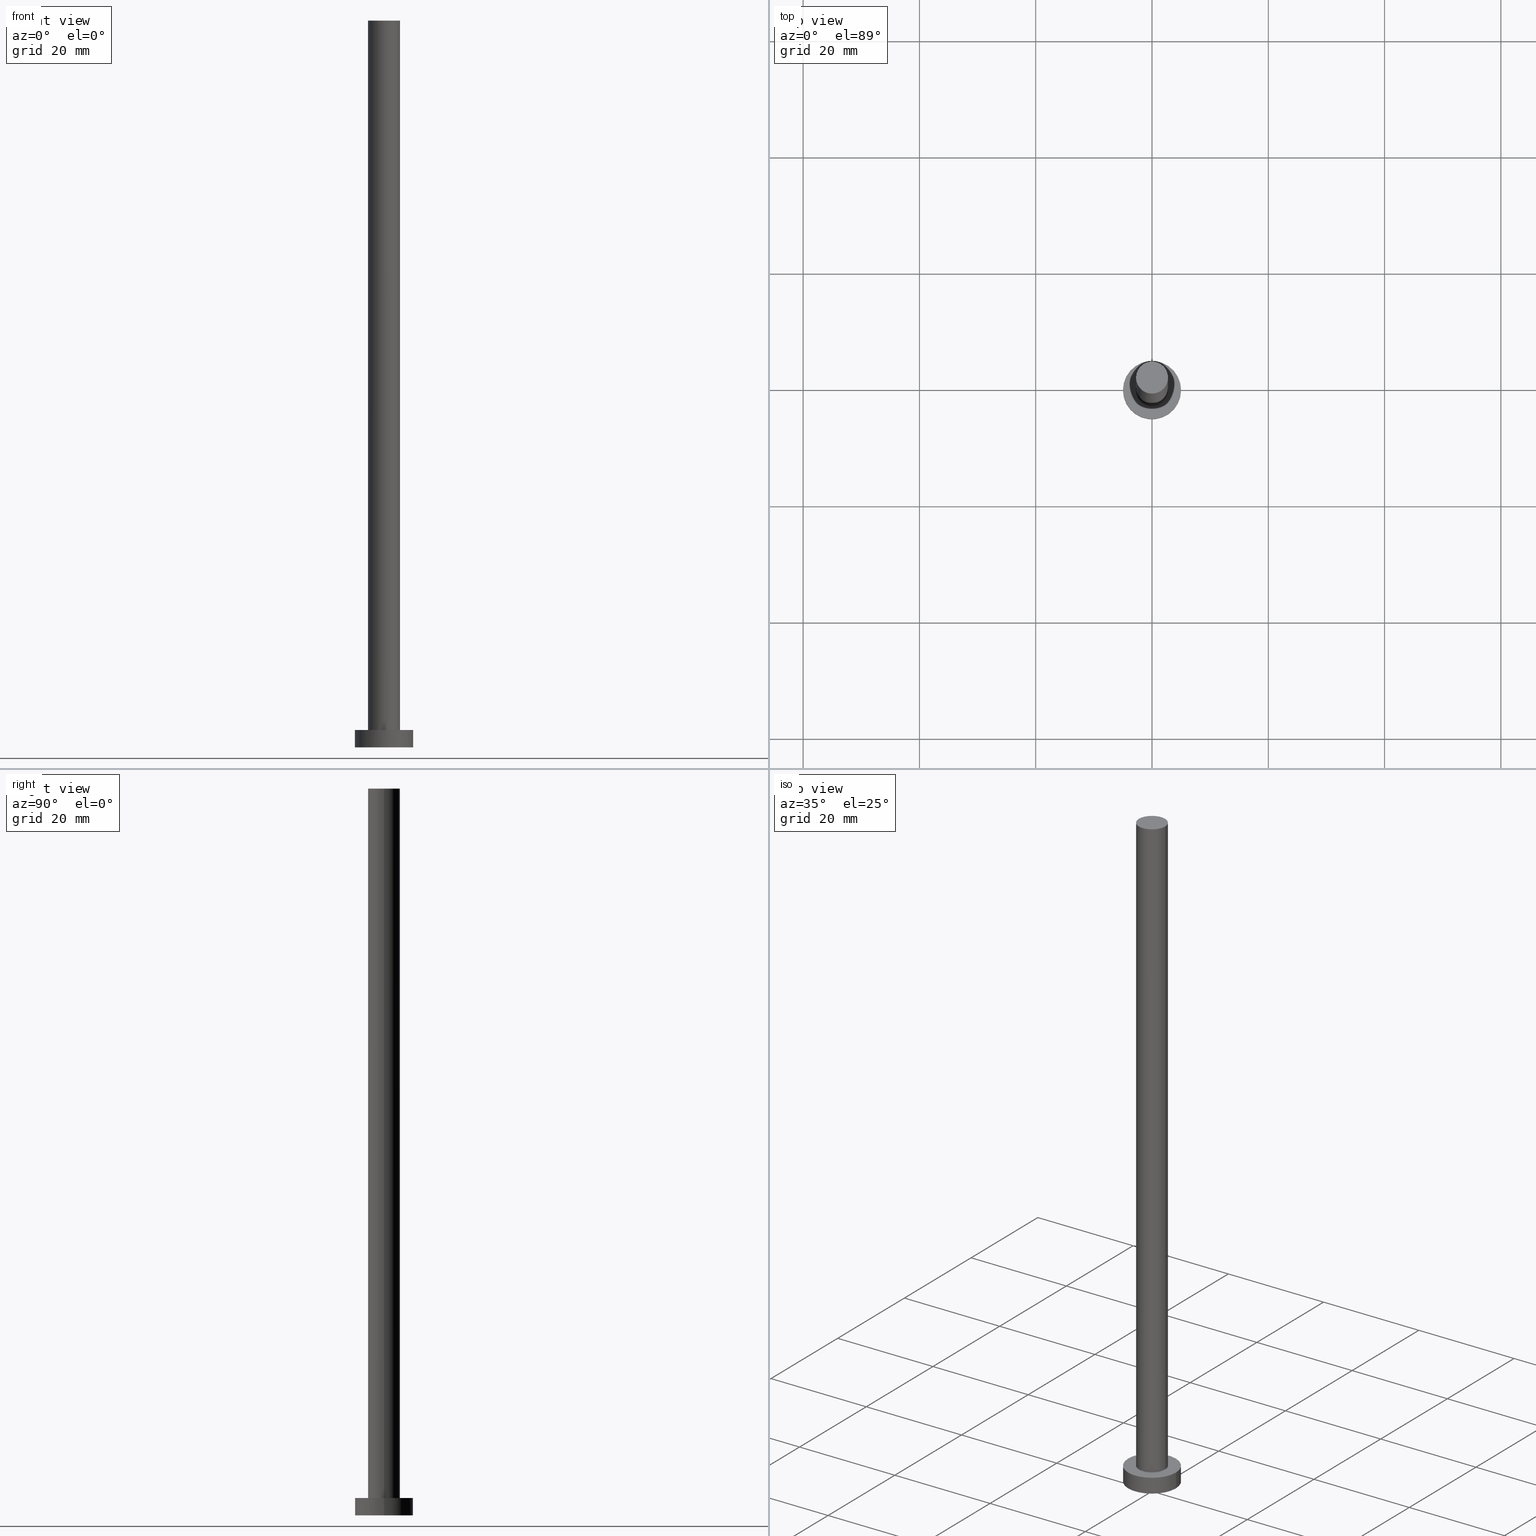
[diagram: canonical four-view strip — front | top / right | iso, engineering-drawing reading convention]
A machine part, canonical four-view strip (front | top / right | iso — engineering-drawing reading convention). The complete STEP part file that produces these views, byte-faithful:
ISO-10303-21;
HEADER;
FILE_DESCRIPTION (( 'STEP AP203' ),
    '1' );
FILE_NAME ('3fe7.STEP',
    '2023-02-13T15:47:36',
    ( '' ),
    ( '' ),
    'SwSTEP 2.0',
    'SolidWorks 2019',
    '' );
FILE_SCHEMA (( 'CONFIG_CONTROL_DESIGN' ));
ENDSEC;

DATA;
#1 = FACE_OUTER_BOUND ( 'NONE', #169, .T. ) ;
#2 = DIRECTION ( 'NONE',  ( 1.000000000000000000, 0.000000000000000000, -0.000000000000000000 ) ) ;
#3 = VERTEX_POINT ( 'NONE', #110 ) ;
#4 = APPROVAL ( #35, 'NEUR�EN�' ) ;
#5 = VECTOR ( 'NONE', #218, 1000.000000000000000 ) ;
#6 = EDGE_CURVE ( 'NONE', #234, #249, #133, .T. ) ;
#7 = DIRECTION ( 'NONE',  ( 0.000000000000000000, 0.000000000000000000, 1.000000000000000000 ) ) ;
#8 = CIRCLE ( 'NONE', #222, 2.750000000000000000 ) ;
#9 = COORDINATED_UNIVERSAL_TIME_OFFSET ( 1, 0, .AHEAD. ) ;
#10 = AXIS2_PLACEMENT_3D ( 'NONE', #43, #134, #138 ) ;
#11 = EDGE_CURVE ( 'NONE', #162, #234, #145, .T. ) ;
#12 = APPLICATION_PROTOCOL_DEFINITION ( 'international standard', 'config_control_design', 1994, #124 ) ;
#13 = APPROVAL_ROLE ( '' ) ;
#14 = APPROVAL_PERSON_ORGANIZATION ( #48, #161, #52 ) ;
#15 = ORIENTED_EDGE ( 'NONE', *, *, #223, .T. ) ;
#16 = EDGE_CURVE ( 'NONE', #98, #120, #190, .T. ) ;
#17 = CARTESIAN_POINT ( 'NONE',  ( 5.000000000000000000, 6.123233995736766282E-16, 0.000000000000000000 ) ) ;
#18 = PLANE ( 'NONE',  #69 ) ;
#19 = CALENDAR_DATE ( 2023, 13, 2 ) ;
#20 = FACE_OUTER_BOUND ( 'NONE', #26, .T. ) ;
#21 = EDGE_CURVE ( 'NONE', #249, #3, #117, .T. ) ;
#22 = CARTESIAN_POINT ( 'NONE',  ( 5.000000000000000000, 6.123233995736766282E-16, 3.000000000000000000 ) ) ;
#23 = CARTESIAN_POINT ( 'NONE',  ( 0.000000000000000000, 0.000000000000000000, 3.000000000000000000 ) ) ;
#24 = DIRECTION ( 'NONE',  ( 0.000000000000000000, 0.000000000000000000, 1.000000000000000000 ) ) ;
#25 = ORIENTED_EDGE ( 'NONE', *, *, #44, .T. ) ;
#26 = EDGE_LOOP ( 'NONE', ( #47, #85, #213, #187 ) ) ;
#27 = DATE_AND_TIME ( #66, #33 ) ;
#28 = DATE_TIME_ROLE ( 'creation_date' ) ;
#29 = DESIGN_CONTEXT ( 'detailed design', #191, 'design' ) ;
#30 = EDGE_LOOP ( 'NONE', ( #236, #15, #25, #247 ) ) ;
#31 = COORDINATED_UNIVERSAL_TIME_OFFSET ( 1, 0, .AHEAD. ) ;
#32 = ORIENTED_EDGE ( 'NONE', *, *, #16, .F. ) ;
#33 = LOCAL_TIME ( 16, 47, 36.00000000000000000, #9 ) ;
#34 = ADVANCED_FACE ( 'NONE', ( #65 ), #80, .T. ) ;
#35 = APPROVAL_STATUS ( 'not_yet_approved' ) ;
#36 = DIRECTION ( 'NONE',  ( -0.000000000000000000, -0.000000000000000000, -1.000000000000000000 ) ) ;
#37 = VECTOR ( 'NONE', #189, 1000.000000000000000 ) ;
#38 = EDGE_CURVE ( 'NONE', #98, #106, #101, .T. ) ;
#39 = CARTESIAN_POINT ( 'NONE',  ( 0.000000000000000000, 0.000000000000000000, 3.000000000000000000 ) ) ;
#40 = DIRECTION ( 'NONE',  ( 1.000000000000000000, 0.000000000000000000, 0.000000000000000000 ) ) ;
#41 = CYLINDRICAL_SURFACE ( 'NONE', #45, 5.000000000000000000 ) ;
#42 = DIRECTION ( 'NONE',  ( 0.000000000000000000, 0.000000000000000000, 1.000000000000000000 ) ) ;
#43 = CARTESIAN_POINT ( 'NONE',  ( 0.000000000000000000, 0.000000000000000000, 125.0000000000000000 ) ) ;
#44 = EDGE_CURVE ( 'NONE', #3, #249, #8, .T. ) ;
#45 = AXIS2_PLACEMENT_3D ( 'NONE', #23, #160, #179 ) ;
#46 = AXIS2_PLACEMENT_3D ( 'NONE', #70, #153, #71 ) ;
#47 = ORIENTED_EDGE ( 'NONE', *, *, #223, .F. ) ;
#48 = PERSON_AND_ORGANIZATION ( #194, #122 ) ;
#49 = APPROVAL_STATUS ( 'not_yet_approved' ) ;
#50 = UNCERTAINTY_MEASURE_WITH_UNIT (LENGTH_MEASURE( 1.000000000000000082E-05 ), #159, 'distance_accuracy_value', 'NONE');
#51 = LOCAL_TIME ( 16, 47, 36.00000000000000000, #215 ) ;
#52 = APPROVAL_ROLE ( '' ) ;
#53 = DIRECTION ( 'NONE',  ( 0.000000000000000000, 0.000000000000000000, 1.000000000000000000 ) ) ;
#54 = ADVANCED_FACE ( 'NONE', ( #181 ), #41, .T. ) ;
#55 = AXIS2_PLACEMENT_3D ( 'NONE', #226, #105, #198 ) ;
#56 = VERTEX_POINT ( 'NONE', #17 ) ;
#57 = PERSON_AND_ORGANIZATION ( #194, #122 ) ;
#58 = AXIS2_PLACEMENT_3D ( 'NONE', #96, #241, #239 ) ;
#59 = CC_DESIGN_APPROVAL ( #150, ( #102 ) ) ;
#60 = VECTOR ( 'NONE', #157, 1000.000000000000000 ) ;
#61 = ORIENTED_EDGE ( 'NONE', *, *, #233, .T. ) ;
#62 = ADVANCED_FACE ( 'NONE', ( #237 ), #185, .T. ) ;
#63 = AXIS2_PLACEMENT_3D ( 'NONE', #227, #53, #94 ) ;
#64 = CC_DESIGN_SECURITY_CLASSIFICATION ( #195, ( #102 ) ) ;
#65 = FACE_OUTER_BOUND ( 'NONE', #175, .T. ) ;
#66 = CALENDAR_DATE ( 2023, 13, 2 ) ;
#67 = PERSON_AND_ORGANIZATION_ROLE ( 'creator' ) ;
#68 = EDGE_CURVE ( 'NONE', #120, #56, #229, .T. ) ;
#69 = AXIS2_PLACEMENT_3D ( 'NONE', #116, #24, #2 ) ;
#70 = CARTESIAN_POINT ( 'NONE',  ( 0.000000000000000000, 0.000000000000000000, 3.000000000000000000 ) ) ;
#71 = DIRECTION ( 'NONE',  ( 1.000000000000000000, 0.000000000000000000, 0.000000000000000000 ) ) ;
#72 = CARTESIAN_POINT ( 'NONE',  ( -5.000000000000000000, 0.000000000000000000, 3.000000000000000000 ) ) ;
#73 = PRODUCT_DEFINITION_SHAPE ( 'NONE', 'NONE',  #137 ) ;
#74 = ORIENTED_EDGE ( 'NONE', *, *, #233, .F. ) ;
#75 = DIRECTION ( 'NONE',  ( 1.000000000000000000, 0.000000000000000000, -0.000000000000000000 ) ) ;
#76 = VECTOR ( 'NONE', #149, 1000.000000000000000 ) ;
#77 = CARTESIAN_POINT ( 'NONE',  ( 0.000000000000000000, 0.000000000000000000, 125.0000000000000000 ) ) ;
#78 = AXIS2_PLACEMENT_3D ( 'NONE', #214, #202, #121 ) ;
#79 = COORDINATED_UNIVERSAL_TIME_OFFSET ( 1, 0, .AHEAD. ) ;
#80 = PLANE ( 'NONE',  #58 ) ;
#81 =( NAMED_UNIT ( * ) PLANE_ANGLE_UNIT ( ) SI_UNIT ( $, .RADIAN. ) );
#82 = PERSON_AND_ORGANIZATION ( #194, #122 ) ;
#83 =( GEOMETRIC_REPRESENTATION_CONTEXT ( 3 ) GLOBAL_UNCERTAINTY_ASSIGNED_CONTEXT ( ( #50 ) ) GLOBAL_UNIT_ASSIGNED_CONTEXT ( ( #159, #81, #152 ) ) REPRESENTATION_CONTEXT ( 'NONE', 'WORKASPACE' ) );
#84 = CC_DESIGN_PERSON_AND_ORGANIZATION_ASSIGNMENT ( #211, #127, ( #186 ) ) ;
#85 = ORIENTED_EDGE ( 'NONE', *, *, #207, .F. ) ;
#86 = PERSON_AND_ORGANIZATION_ROLE ( 'design_supplier' ) ;
#87 = ORIENTED_EDGE ( 'NONE', *, *, #207, .T. ) ;
#88 = AXIS2_PLACEMENT_3D ( 'NONE', #147, #7, #141 ) ;
#89 = EDGE_LOOP ( 'NONE', ( #199, #95 ) ) ;
#90 = ADVANCED_FACE ( 'NONE', ( #104 ), #167, .T. ) ;
#91 = ADVANCED_BREP_SHAPE_REPRESENTATION ( '3fe7', ( #206, #88 ), #83 ) ;
#92 = CARTESIAN_POINT ( 'NONE',  ( 0.000000000000000000, 0.000000000000000000, 0.000000000000000000 ) ) ;
#93 = CARTESIAN_POINT ( 'NONE',  ( -2.750000000000000000, 0.000000000000000000, 125.0000000000000000 ) ) ;
#94 = DIRECTION ( 'NONE',  ( 1.000000000000000000, 0.000000000000000000, 0.000000000000000000 ) ) ;
#95 = ORIENTED_EDGE ( 'NONE', *, *, #44, .F. ) ;
#96 = CARTESIAN_POINT ( 'NONE',  ( 0.000000000000000000, 0.000000000000000000, 125.0000000000000000 ) ) ;
#97 = CALENDAR_DATE ( 2023, 13, 2 ) ;
#98 = VERTEX_POINT ( 'NONE', #246 ) ;
#99 = EDGE_LOOP ( 'NONE', ( #192, #123 ) ) ;
#100 = EDGE_CURVE ( 'NONE', #106, #98, #108, .T. ) ;
#101 = CIRCLE ( 'NONE', #111, 5.000000000000000000 ) ;
#102 = PRODUCT_DEFINITION_FORMATION_WITH_SPECIFIED_SOURCE ( 'LIBOVOLN�', '', #186, .NOT_KNOWN. ) ;
#103 = DATE_AND_TIME ( #225, #201 ) ;
#104 = FACE_OUTER_BOUND ( 'NONE', #130, .T. ) ;
#105 = DIRECTION ( 'NONE',  ( 0.000000000000000000, 0.000000000000000000, 1.000000000000000000 ) ) ;
#106 = VERTEX_POINT ( 'NONE', #217 ) ;
#107 = CC_DESIGN_PERSON_AND_ORGANIZATION_ASSIGNMENT ( #82, #86, ( #102 ) ) ;
#108 = CIRCLE ( 'NONE', #46, 5.000000000000000000 ) ;
#109 = DIRECTION ( 'NONE',  ( -1.000000000000000000, 0.000000000000000000, 0.000000000000000000 ) ) ;
#110 = CARTESIAN_POINT ( 'NONE',  ( 2.750000000000000000, 3.367778697655220519E-16, 3.000000000000000000 ) ) ;
#111 = AXIS2_PLACEMENT_3D ( 'NONE', #146, #208, #220 ) ;
#112 = LINE ( 'NONE', #182, #5 ) ;
#113 = CARTESIAN_POINT ( 'NONE',  ( 0.000000000000000000, 0.000000000000000000, 125.0000000000000000 ) ) ;
#114 = FACE_BOUND ( 'NONE', #89, .T. ) ;
#115 = CC_DESIGN_PERSON_AND_ORGANIZATION_ASSIGNMENT ( #244, #245, ( #195 ) ) ;
#116 = CARTESIAN_POINT ( 'NONE',  ( 0.000000000000000000, 0.000000000000000000, 0.000000000000000000 ) ) ;
#117 = CIRCLE ( 'NONE', #78, 2.750000000000000000 ) ;
#118 = AXIS2_PLACEMENT_3D ( 'NONE', #92, #42, #40 ) ;
#119 = MECHANICAL_CONTEXT ( 'NONE', #124, 'mechanical' ) ;
#120 = VERTEX_POINT ( 'NONE', #254 ) ;
#121 = DIRECTION ( 'NONE',  ( 1.000000000000000000, 0.000000000000000000, 0.000000000000000000 ) ) ;
#122 = ORGANIZATION ( 'NEUR�EN�', 'NEUR�EN�', '' ) ;
#123 = ORIENTED_EDGE ( 'NONE', *, *, #100, .T. ) ;
#124 = APPLICATION_CONTEXT ( 'configuration controlled 3d designs of mechanical parts and assemblies' ) ;
#125 = DIRECTION ( 'NONE',  ( 1.000000000000000000, 0.000000000000000000, 0.000000000000000000 ) ) ;
#126 = SHAPE_DEFINITION_REPRESENTATION ( #73, #91 ) ;
#127 = PERSON_AND_ORGANIZATION_ROLE ( 'design_owner' ) ;
#128 = CC_DESIGN_DATE_AND_TIME_ASSIGNMENT ( #180, #248, ( #195 ) ) ;
#129 = DIRECTION ( 'NONE',  ( -1.000000000000000000, 0.000000000000000000, 0.000000000000000000 ) ) ;
#130 = EDGE_LOOP ( 'NONE', ( #74, #196, #140, #209 ) ) ;
#131 = APPROVAL_ROLE ( '' ) ;
#132 = AXIS2_PLACEMENT_3D ( 'NONE', #39, #136, #75 ) ;
#133 = LINE ( 'NONE', #251, #76 ) ;
#134 = DIRECTION ( 'NONE',  ( -0.000000000000000000, -0.000000000000000000, -1.000000000000000000 ) ) ;
#135 = CLOSED_SHELL ( 'NONE', ( #62, #54, #90, #144, #243, #188, #34 ) ) ;
#136 = DIRECTION ( 'NONE',  ( 0.000000000000000000, 0.000000000000000000, 1.000000000000000000 ) ) ;
#137 = PRODUCT_DEFINITION ( 'NEZN�M�', '', #102, #29 ) ;
#138 = DIRECTION ( 'NONE',  ( -1.000000000000000000, 0.000000000000000000, 0.000000000000000000 ) ) ;
#139 = CYLINDRICAL_SURFACE ( 'NONE', #10, 2.750000000000000000 ) ;
#140 = ORIENTED_EDGE ( 'NONE', *, *, #16, .T. ) ;
#141 = DIRECTION ( 'NONE',  ( 1.000000000000000000, 0.000000000000000000, 0.000000000000000000 ) ) ;
#142 = CC_DESIGN_APPROVAL ( #4, ( #195 ) ) ;
#143 = APPROVAL_DATE_TIME ( #27, #161 ) ;
#144 = ADVANCED_FACE ( 'NONE', ( #114, #235 ), #231, .T. ) ;
#145 = CIRCLE ( 'NONE', #63, 2.750000000000000000 ) ;
#146 = CARTESIAN_POINT ( 'NONE',  ( 0.000000000000000000, 0.000000000000000000, 3.000000000000000000 ) ) ;
#147 = CARTESIAN_POINT ( 'NONE',  ( 0.000000000000000000, 0.000000000000000000, 0.000000000000000000 ) ) ;
#148 = CARTESIAN_POINT ( 'NONE',  ( 0.000000000000000000, 0.000000000000000000, 3.000000000000000000 ) ) ;
#149 = DIRECTION ( 'NONE',  ( -0.000000000000000000, -0.000000000000000000, -1.000000000000000000 ) ) ;
#150 = APPROVAL ( #49, 'NEUR�EN�' ) ;
#151 = CIRCLE ( 'NONE', #118, 5.000000000000000000 ) ;
#152 =( NAMED_UNIT ( * ) SI_UNIT ( $, .STERADIAN. ) SOLID_ANGLE_UNIT ( ) );
#153 = DIRECTION ( 'NONE',  ( 0.000000000000000000, 0.000000000000000000, 1.000000000000000000 ) ) ;
#154 = PERSON_AND_ORGANIZATION ( #194, #122 ) ;
#155 = PERSON_AND_ORGANIZATION ( #194, #122 ) ;
#156 = AXIS2_PLACEMENT_3D ( 'NONE', #77, #212, #129 ) ;
#157 = DIRECTION ( 'NONE',  ( -0.000000000000000000, -0.000000000000000000, -1.000000000000000000 ) ) ;
#158 = ORIENTED_EDGE ( 'NONE', *, *, #197, .T. ) ;
#159 =( LENGTH_UNIT ( ) NAMED_UNIT ( * ) SI_UNIT ( .MILLI., .METRE. ) );
#160 = DIRECTION ( 'NONE',  ( -0.000000000000000000, -0.000000000000000000, -1.000000000000000000 ) ) ;
#161 = APPROVAL ( #173, 'NEUR�EN�' ) ;
#162 = VERTEX_POINT ( 'NONE', #184 ) ;
#163 = DATE_AND_TIME ( #172, #238 ) ;
#164 = COORDINATED_UNIVERSAL_TIME_OFFSET ( 1, 0, .AHEAD. ) ;
#165 = ORIENTED_EDGE ( 'NONE', *, *, #100, .F. ) ;
#166 = SECURITY_CLASSIFICATION_LEVEL ( 'unclassified' ) ;
#167 = CYLINDRICAL_SURFACE ( 'NONE', #219, 5.000000000000000000 ) ;
#168 = CARTESIAN_POINT ( 'NONE',  ( 0.000000000000000000, 0.000000000000000000, 3.000000000000000000 ) ) ;
#169 = EDGE_LOOP ( 'NONE', ( #242, #174 ) ) ;
#170 = CC_DESIGN_APPROVAL ( #161, ( #137 ) ) ;
#171 = PERSON_AND_ORGANIZATION ( #194, #122 ) ;
#172 = CALENDAR_DATE ( 2023, 13, 2 ) ;
#173 = APPROVAL_STATUS ( 'not_yet_approved' ) ;
#174 = ORIENTED_EDGE ( 'NONE', *, *, #197, .F. ) ;
#175 = EDGE_LOOP ( 'NONE', ( #87, #253 ) ) ;
#176 = APPROVAL_DATE_TIME ( #163, #150 ) ;
#177 = APPROVAL_PERSON_ORGANIZATION ( #57, #150, #131 ) ;
#178 = CARTESIAN_POINT ( 'NONE',  ( -2.750000000000000000, 0.000000000000000000, 3.000000000000000000 ) ) ;
#179 = DIRECTION ( 'NONE',  ( -1.000000000000000000, 0.000000000000000000, 0.000000000000000000 ) ) ;
#180 = DATE_AND_TIME ( #19, #51 ) ;
#181 = FACE_OUTER_BOUND ( 'NONE', #221, .T. ) ;
#182 = CARTESIAN_POINT ( 'NONE',  ( 2.750000000000000000, 3.367778697655220519E-16, 125.0000000000000000 ) ) ;
#183 = LOCAL_TIME ( 16, 47, 36.00000000000000000, #164 ) ;
#184 = CARTESIAN_POINT ( 'NONE',  ( 2.750000000000000000, 3.367778697655220519E-16, 125.0000000000000000 ) ) ;
#185 = CYLINDRICAL_SURFACE ( 'NONE', #156, 2.750000000000000000 ) ;
#186 = PRODUCT ( '3fe7', '3fe7', '', ( #119 ) ) ;
#187 = ORIENTED_EDGE ( 'NONE', *, *, #21, .T. ) ;
#188 = ADVANCED_FACE ( 'NONE', ( #20 ), #139, .T. ) ;
#189 = DIRECTION ( 'NONE',  ( -0.000000000000000000, -0.000000000000000000, -1.000000000000000000 ) ) ;
#190 = LINE ( 'NONE', #72, #60 ) ;
#191 = APPLICATION_CONTEXT ( 'configuration controlled 3d designs of mechanical parts and assemblies' ) ;
#192 = ORIENTED_EDGE ( 'NONE', *, *, #38, .T. ) ;
#193 = PERSON_AND_ORGANIZATION_ROLE ( 'creator' ) ;
#194 = PERSON ( 'NEUR�EN�', 'NEUR�EN�', 'NEUR�EN�', ('NEUR�EN�'), ('NEUR�EN�'), ('NEUR�EN�') ) ;
#195 = SECURITY_CLASSIFICATION ( '', '', #166 ) ;
#196 = ORIENTED_EDGE ( 'NONE', *, *, #38, .F. ) ;
#197 = EDGE_CURVE ( 'NONE', #56, #120, #151, .T. ) ;
#198 = DIRECTION ( 'NONE',  ( 1.000000000000000000, 0.000000000000000000, 0.000000000000000000 ) ) ;
#199 = ORIENTED_EDGE ( 'NONE', *, *, #21, .F. ) ;
#200 = APPLICATION_PROTOCOL_DEFINITION ( 'international standard', 'config_control_design', 1994, #191 ) ;
#201 = LOCAL_TIME ( 16, 47, 36.00000000000000000, #31 ) ;
#202 = DIRECTION ( 'NONE',  ( 0.000000000000000000, 0.000000000000000000, 1.000000000000000000 ) ) ;
#203 = CC_DESIGN_DATE_AND_TIME_ASSIGNMENT ( #230, #28, ( #137 ) ) ;
#204 = LINE ( 'NONE', #22, #37 ) ;
#205 = AXIS2_PLACEMENT_3D ( 'NONE', #113, #216, #255 ) ;
#206 = MANIFOLD_SOLID_BREP ( 'P�idat vysunut�m3', #135 ) ;
#207 = EDGE_CURVE ( 'NONE', #234, #162, #232, .T. ) ;
#208 = DIRECTION ( 'NONE',  ( 0.000000000000000000, 0.000000000000000000, 1.000000000000000000 ) ) ;
#209 = ORIENTED_EDGE ( 'NONE', *, *, #68, .T. ) ;
#210 = PRODUCT_RELATED_PRODUCT_CATEGORY ( 'detail', '', ( #186 ) ) ;
#211 = PERSON_AND_ORGANIZATION ( #194, #122 ) ;
#212 = DIRECTION ( 'NONE',  ( -0.000000000000000000, -0.000000000000000000, -1.000000000000000000 ) ) ;
#213 = ORIENTED_EDGE ( 'NONE', *, *, #6, .T. ) ;
#214 = CARTESIAN_POINT ( 'NONE',  ( 0.000000000000000000, 0.000000000000000000, 3.000000000000000000 ) ) ;
#215 = COORDINATED_UNIVERSAL_TIME_OFFSET ( 1, 0, .AHEAD. ) ;
#216 = DIRECTION ( 'NONE',  ( 0.000000000000000000, 0.000000000000000000, 1.000000000000000000 ) ) ;
#217 = CARTESIAN_POINT ( 'NONE',  ( 5.000000000000000000, 6.123233995736766282E-16, 3.000000000000000000 ) ) ;
#218 = DIRECTION ( 'NONE',  ( -0.000000000000000000, -0.000000000000000000, -1.000000000000000000 ) ) ;
#219 = AXIS2_PLACEMENT_3D ( 'NONE', #168, #36, #109 ) ;
#220 = DIRECTION ( 'NONE',  ( 1.000000000000000000, 0.000000000000000000, 0.000000000000000000 ) ) ;
#221 = EDGE_LOOP ( 'NONE', ( #165, #61, #158, #32 ) ) ;
#222 = AXIS2_PLACEMENT_3D ( 'NONE', #148, #224, #125 ) ;
#223 = EDGE_CURVE ( 'NONE', #162, #3, #112, .T. ) ;
#224 = DIRECTION ( 'NONE',  ( 0.000000000000000000, 0.000000000000000000, 1.000000000000000000 ) ) ;
#225 = CALENDAR_DATE ( 2023, 13, 2 ) ;
#226 = CARTESIAN_POINT ( 'NONE',  ( 0.000000000000000000, 0.000000000000000000, 0.000000000000000000 ) ) ;
#227 = CARTESIAN_POINT ( 'NONE',  ( 0.000000000000000000, 0.000000000000000000, 125.0000000000000000 ) ) ;
#228 = APPROVAL_DATE_TIME ( #103, #4 ) ;
#229 = CIRCLE ( 'NONE', #55, 5.000000000000000000 ) ;
#230 = DATE_AND_TIME ( #97, #183 ) ;
#231 = PLANE ( 'NONE',  #132 ) ;
#232 = CIRCLE ( 'NONE', #205, 2.750000000000000000 ) ;
#233 = EDGE_CURVE ( 'NONE', #106, #56, #204, .T. ) ;
#234 = VERTEX_POINT ( 'NONE', #93 ) ;
#235 = FACE_OUTER_BOUND ( 'NONE', #99, .T. ) ;
#236 = ORIENTED_EDGE ( 'NONE', *, *, #11, .F. ) ;
#237 = FACE_OUTER_BOUND ( 'NONE', #30, .T. ) ;
#238 = LOCAL_TIME ( 16, 47, 36.00000000000000000, #79 ) ;
#239 = DIRECTION ( 'NONE',  ( 1.000000000000000000, 0.000000000000000000, -0.000000000000000000 ) ) ;
#240 = CC_DESIGN_PERSON_AND_ORGANIZATION_ASSIGNMENT ( #154, #67, ( #137 ) ) ;
#241 = DIRECTION ( 'NONE',  ( 0.000000000000000000, 0.000000000000000000, 1.000000000000000000 ) ) ;
#242 = ORIENTED_EDGE ( 'NONE', *, *, #68, .F. ) ;
#243 = ADVANCED_FACE ( 'NONE', ( #1 ), #18, .F. ) ;
#244 = PERSON_AND_ORGANIZATION ( #194, #122 ) ;
#245 = PERSON_AND_ORGANIZATION_ROLE ( 'classification_officer' ) ;
#246 = CARTESIAN_POINT ( 'NONE',  ( -5.000000000000000000, 0.000000000000000000, 3.000000000000000000 ) ) ;
#247 = ORIENTED_EDGE ( 'NONE', *, *, #6, .F. ) ;
#248 = DATE_TIME_ROLE ( 'classification_date' ) ;
#249 = VERTEX_POINT ( 'NONE', #178 ) ;
#250 = CC_DESIGN_PERSON_AND_ORGANIZATION_ASSIGNMENT ( #171, #193, ( #102 ) ) ;
#251 = CARTESIAN_POINT ( 'NONE',  ( -2.750000000000000000, 0.000000000000000000, 125.0000000000000000 ) ) ;
#252 = APPROVAL_PERSON_ORGANIZATION ( #155, #4, #13 ) ;
#253 = ORIENTED_EDGE ( 'NONE', *, *, #11, .T. ) ;
#254 = CARTESIAN_POINT ( 'NONE',  ( -5.000000000000000000, 0.000000000000000000, 0.000000000000000000 ) ) ;
#255 = DIRECTION ( 'NONE',  ( 1.000000000000000000, 0.000000000000000000, 0.000000000000000000 ) ) ;
ENDSEC;
END-ISO-10303-21;
